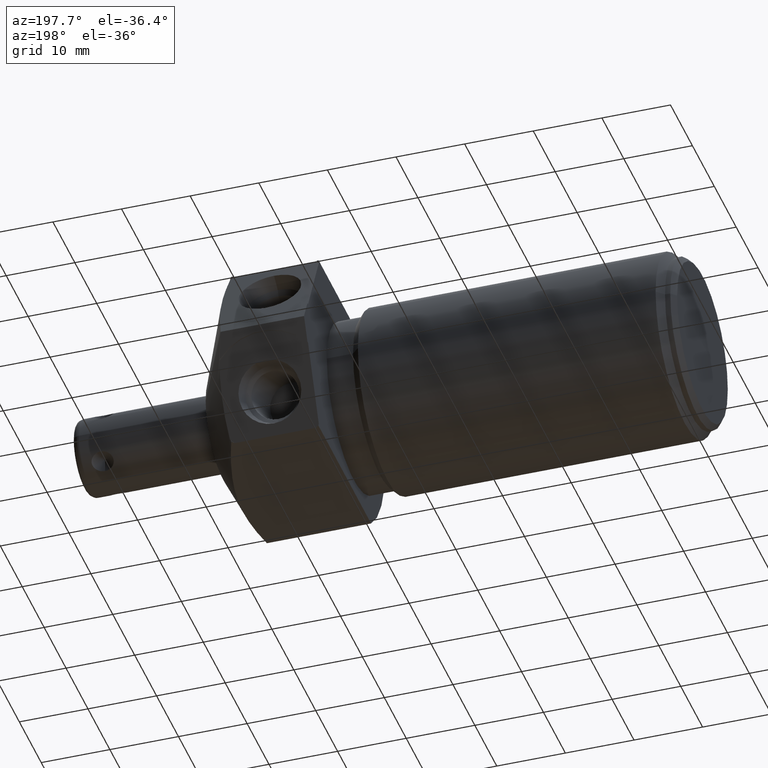
[diagram: clean part render]
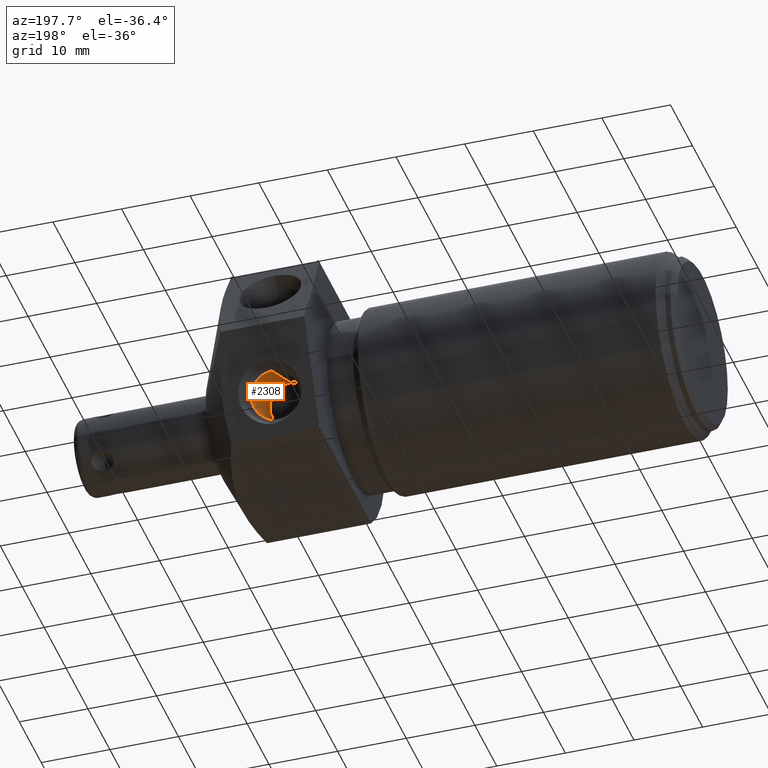
[diagram: same view with one face highlighted and labeled with its STEP entity id]
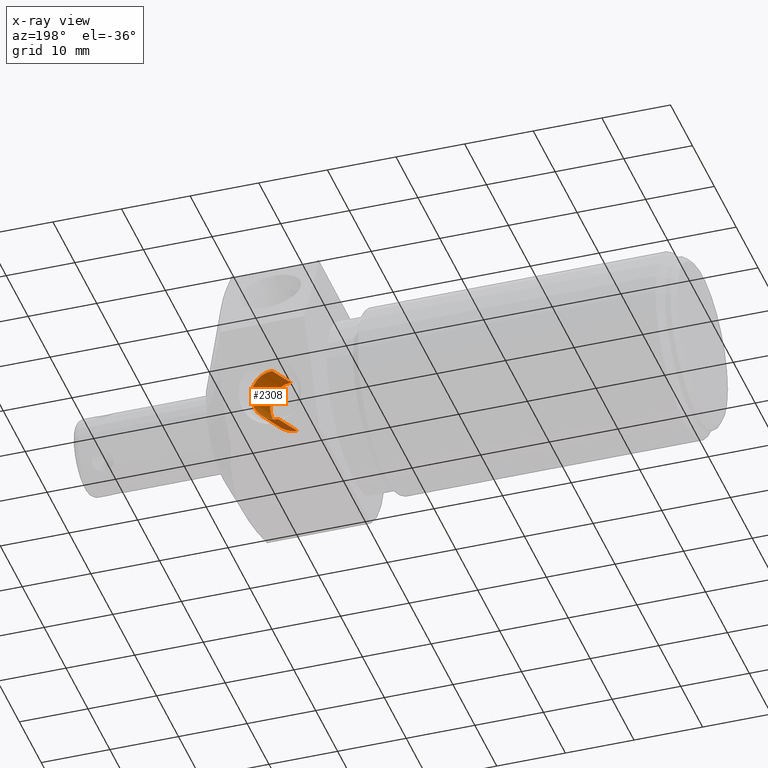
[diagram: x-ray of the same camera — body ghosted, the highlighted face saturated]
A machine part, auxiliary view. The second image highlights one B-rep face of the part: STEP entity #2308.
The next image is the same camera in x-ray: the body ghosted, the highlighted face saturated — about 2% of this face is hidden behind the body in this view.
In plain terms, the highlighted cylindrical surface (edge-blend (fillet) strip) has radius 3.4544 mm, axis along (0, 0.9063, -0.4226).
Its self-contained STEP definition (entity closure, byte-faithful):
#1010=CARTESIAN_POINT('',(2.5E-1,4.427238215801E-1,-2.936450405254E-1));
#1011=DIRECTION('',(0.E0,-9.063077870366E-1,4.226182617407E-1));
#1012=DIRECTION('',(0.E0,-4.226182617407E-1,-9.063077870366E-1));
#1013=AXIS2_PLACEMENT_3D('',#1010,#1011,#1012);
#1034=DIRECTION('',(0.E0,9.063077870366E-1,-4.226182617407E-1));
#1035=VECTOR('',#1034,3.728233597761E-1);
#1036=CARTESIAN_POINT('',(2.5E-1,4.735502382907E-2,-2.593409393175E-1));
#1037=LINE('',#1036,#1035);
#1041=DIRECTION('',(0.E0,9.063077870366E-1,-4.226182617407E-1));
#1042=VECTOR('',#1041,3.728233597761E-1);
#1043=CARTESIAN_POINT('',(2.5E-1,1.623071910225E-1,-1.282522124352E-2));
#1044=LINE('',#1043,#1042);
#1048=CARTESIAN_POINT('',(2.5E-1,1.048311074258E-1,-1.360830802805E-1));
#1049=DIRECTION('',(0.E0,-9.063077870366E-1,4.226182617407E-1));
#1050=DIRECTION('',(0.E0,-4.226182617407E-1,-9.063077870366E-1));
#1051=AXIS2_PLACEMENT_3D('',#1048,#1049,#1050);
#1496=CARTESIAN_POINT('',(2.5E-1,4.735502382907E-2,-2.593409393175E-1));
#1497=CARTESIAN_POINT('',(2.5E-1,3.852477379833E-1,-4.169028995624E-1));
#1498=VERTEX_POINT('',#1496);
#1499=VERTEX_POINT('',#1497);
#1502=CARTESIAN_POINT('',(2.5E-1,1.623071910225E-1,-1.282522124352E-2));
#1503=CARTESIAN_POINT('',(2.5E-1,5.001999051768E-1,-1.703871814884E-1));
#1504=VERTEX_POINT('',#1502);
#1505=VERTEX_POINT('',#1503);
#2296=CARTESIAN_POINT('',(2.5E-1,8.307972053692E-2,-1.259402419987E-1));
#2297=DIRECTION('',(0.E0,9.063077870366E-1,-4.226182617407E-1));
#2298=DIRECTION('',(0.E0,-4.226182617407E-1,-9.063077870366E-1));
#2299=AXIS2_PLACEMENT_3D('',#2296,#2297,#2298);
#2300=CYLINDRICAL_SURFACE('',#2299,1.36E-1);
#2301=ORIENTED_EDGE('',*,*,#2286,.T.);
#2302=ORIENTED_EDGE('',*,*,#2263,.T.);
#2303=ORIENTED_EDGE('',*,*,#2290,.F.);
#2305=ORIENTED_EDGE('',*,*,#2304,.F.);
#2306=EDGE_LOOP('',(#2301,#2302,#2303,#2305));
#2307=FACE_OUTER_BOUND('',#2306,.F.);
#2308=ADVANCED_FACE('',(#2307),#2300,.F.);
#1014=CIRCLE('',#1013,1.36E-1);
#1052=CIRCLE('',#1051,1.36E-1);
#2263=EDGE_CURVE('',#1499,#1505,#1014,.T.);
#2286=EDGE_CURVE('',#1498,#1499,#1037,.T.);
#2290=EDGE_CURVE('',#1504,#1505,#1044,.T.);
#2304=EDGE_CURVE('',#1498,#1504,#1052,.T.);